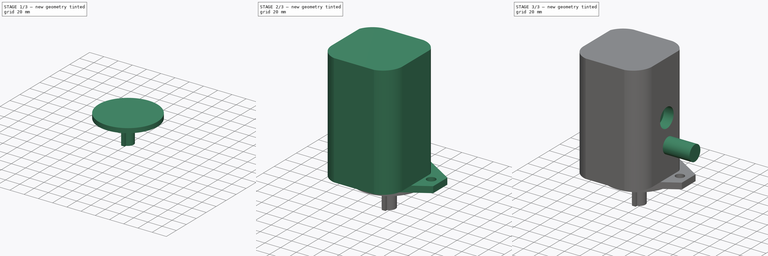
[diagram: build sequence overview — one tinted view per stage of 3, left to right]
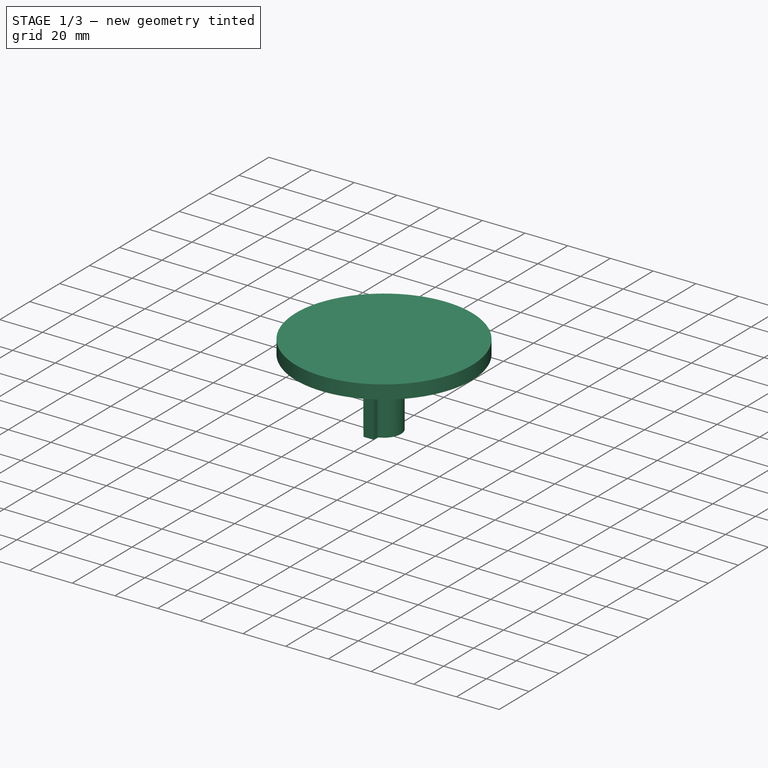
[diagram: stage 1 of 3 — iso view after this stage's code; geometry added in this stage tinted green]
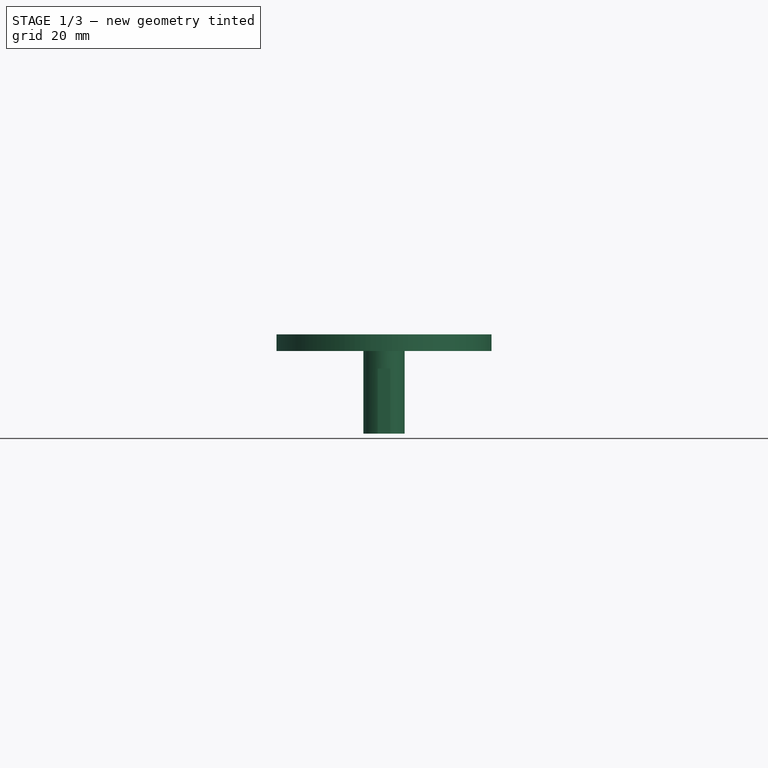
[diagram: stage 1 of 3 — front view after this stage's code; geometry added in this stage tinted green]
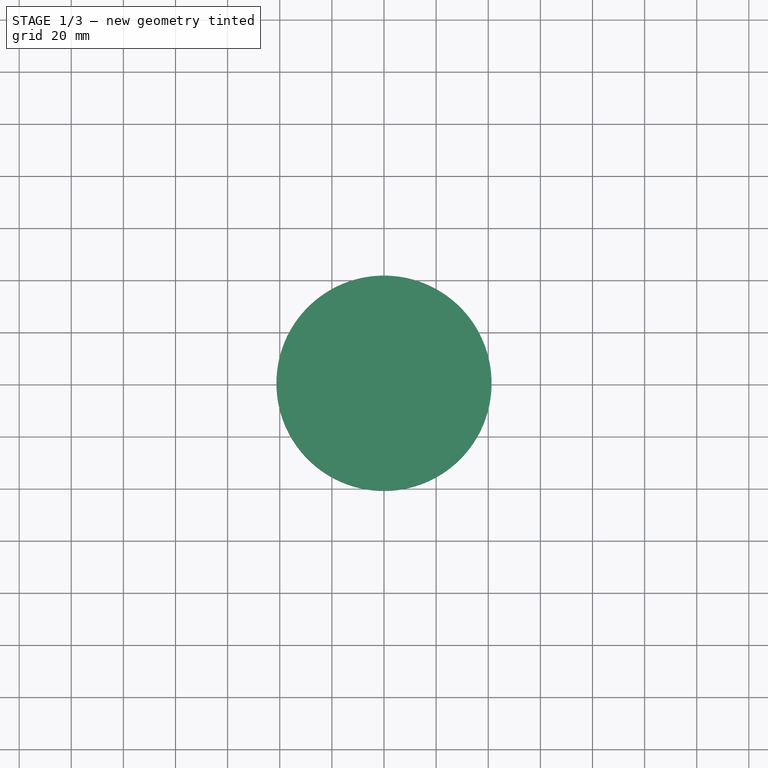
[diagram: stage 1 of 3 — top view after this stage's code; geometry added in this stage tinted green]
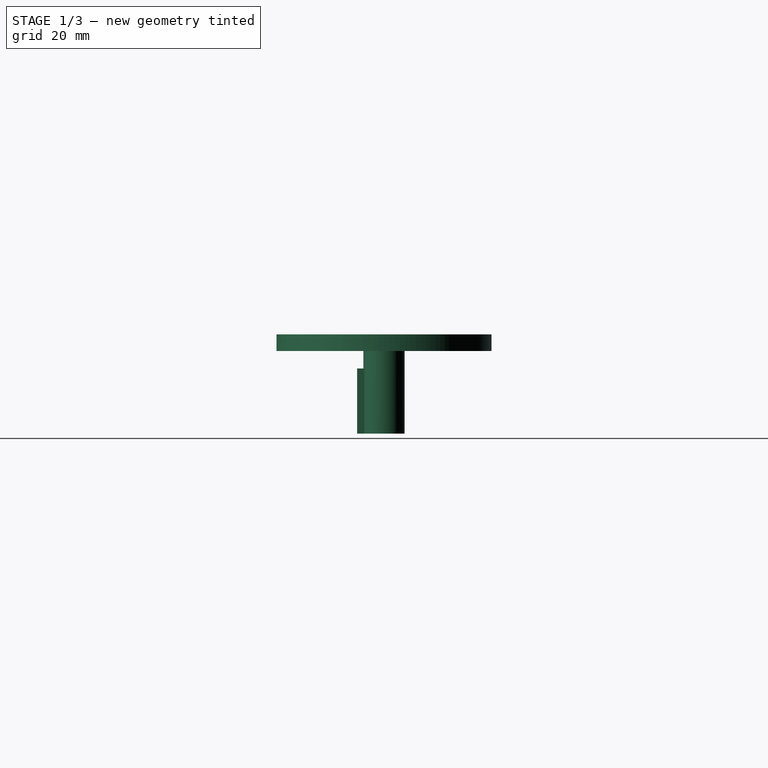
[diagram: stage 1 of 3 — right view after this stage's code; geometry added in this stage tinted green]
FCSTD DOCUMENT  (FreeCAD 0.16R6712 (Git))
Label: PC1708 log splitter hydraulic pump
License: All rights reserved
LicenseURL: http://en.wikipedia.org/wiki/All_rights_reserved
objects: Sketcher::SketchObject×8, PartDesign::Pad×6, PartDesign::Pocket×2
note: 24 computed .brp shape members not serialized (recipe doc carries the construction recipe); baked Part::Feature solids carry a one-line shape summary decoded from their .brp

FEATURE [Sketcher::SketchObject] Sketch  label="Round Shaft"
  sketch-geometry (1):
    g0: Circle CenterX=0 CenterY=0 CenterZ=0 NormalX=0 NormalY=0 NormalZ=1 Radius=7.9375
  constraints (2):
    c: Coincident(g0,g-1)
    c: Radius(g0) = 7.9375
FEATURE [PartDesign::Pad] Pad  label="Shaft rod"
  Length = 31.7
  Length2 = 100
  Sketch = -> Sketch
  Type = 0
FEATURE [Sketcher::SketchObject] Sketch001  label="Key way"
  ExternalGeometry = -> [Pad]
  Placement = pos=(0,0,0) rot=(1,0,0;3.14159rad)
  Support = -> Pad [Face2]
  sketch-geometry (6):
    g0: LineSegment StartX=-2.38 StartY=10.3175 StartZ=0 EndX=2.38 EndY=10.3175 EndZ=0
    g1: LineSegment StartX=2.38 StartY=10.3175 StartZ=0 EndX=2.38 EndY=5.5575 EndZ=0
    g2: LineSegment StartX=2.38 StartY=5.5575 StartZ=0 EndX=-2.38 EndY=5.5575 EndZ=0
    g3: LineSegment StartX=-2.38 StartY=5.5575 StartZ=0 EndX=-2.38 EndY=10.3175 EndZ=0
    g4: LineSegment [constr] StartX=0 StartY=7.9375 StartZ=0 EndX=-2.38 EndY=7.9375 EndZ=0
    g5: LineSegment [constr] StartX=0 StartY=7.9375 StartZ=0 EndX=2.38 EndY=7.9375 EndZ=0
  constraints (20):
    c: Coincident(g0,g1)
    c: Coincident(g1,g2)
    c: Coincident(g2,g3)
    c: Coincident(g3,g0)
    c: Horizontal(g0)
    c: Horizontal(g2)
    c: Vertical(g1)
    c: Equal(g0,g3)
    c: Equal(g3,g2)
    c: Equal(g2,g1)
    c: DistanceY(g3,g3) = 4.76  'Shaft Key way'
    c: Symmetric(g2,g1,g-2)  'Constraint12'
    c: PointOnObject(g4,g-3)
    c: Horizontal(g4)
    c: Coincident(g5,g4)
    c: Horizontal(g5)
    c: Equal(g4,g5)
    c: PointOnObject(g4,g3)
    c: PointOnObject(g5,g1)
    c: Symmetric(g0,g2,g4)
FEATURE [PartDesign::Pad] Pad001  label="Keyed shaft"
  Length = 25
  Length2 = 100
  Reversed = true
  Sketch = -> Sketch001
  Type = 0
FEATURE [Sketcher::SketchObject] Sketch002  label="Face01"
  Placement = pos=(0,0,31.7) rot=(0,0,1;0rad)
  Support = -> Pad001 [Face1]
  sketch-geometry (1):
    g0: Circle CenterX=0 CenterY=0 CenterZ=0 NormalX=0 NormalY=0 NormalZ=1 Radius=41.275
  constraints (2):
    c: Coincident(g0,g-1)
    c: Radius(g0) = 41.275
FEATURE [PartDesign::Pad] Pad002  label="Face plate"
  Length = 6.4
  Length2 = 100
  Sketch = -> Sketch002
  Type = 0
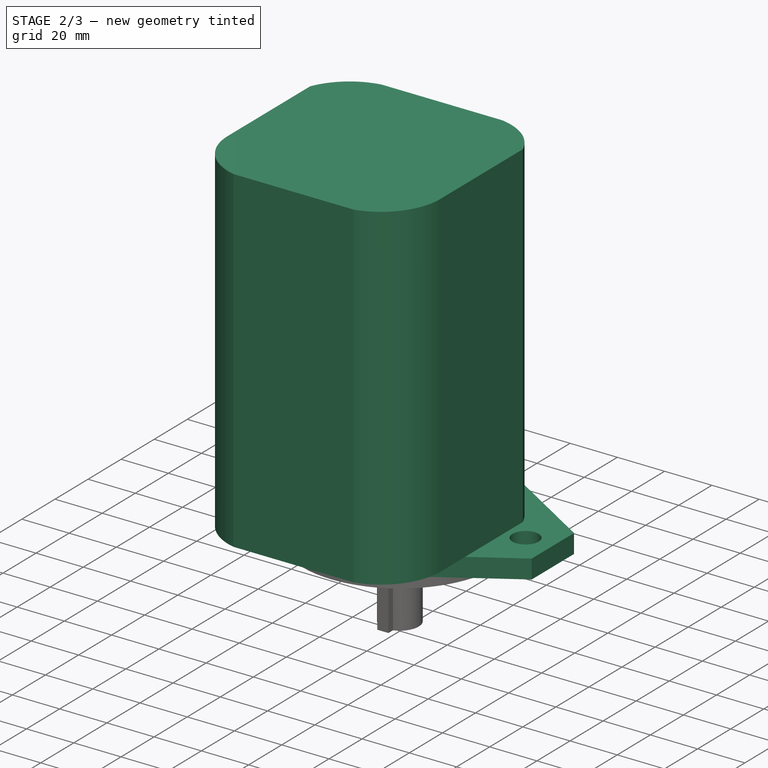
[diagram: stage 2 of 3 — iso view after this stage's code; geometry added in this stage tinted green]
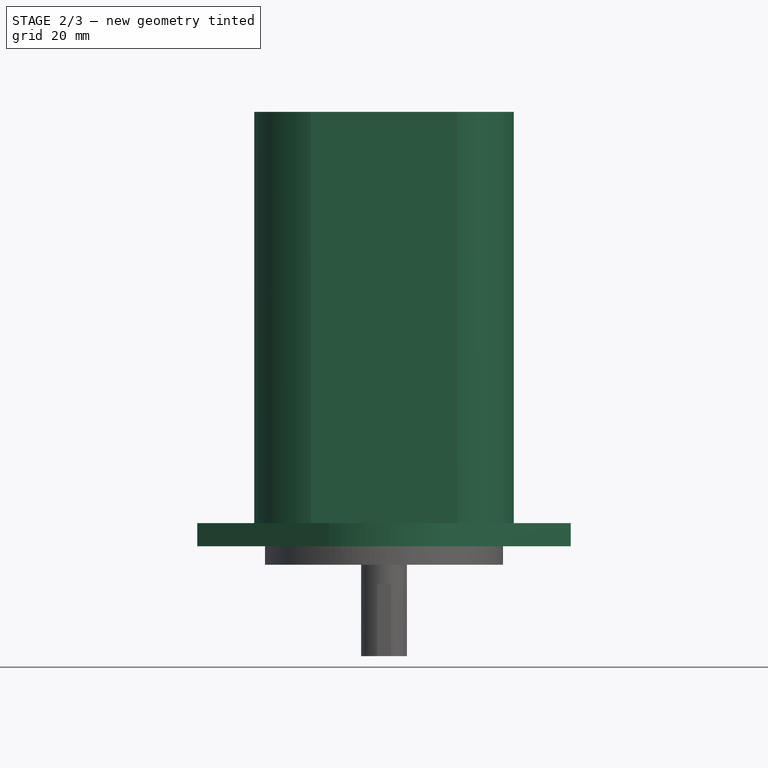
[diagram: stage 2 of 3 — front view after this stage's code; geometry added in this stage tinted green]
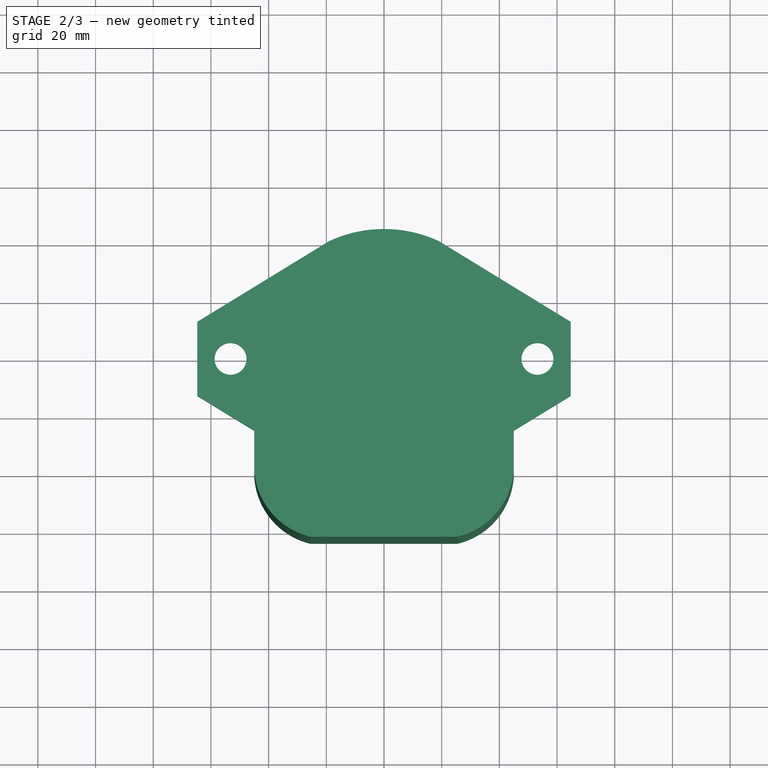
[diagram: stage 2 of 3 — top view after this stage's code; geometry added in this stage tinted green]
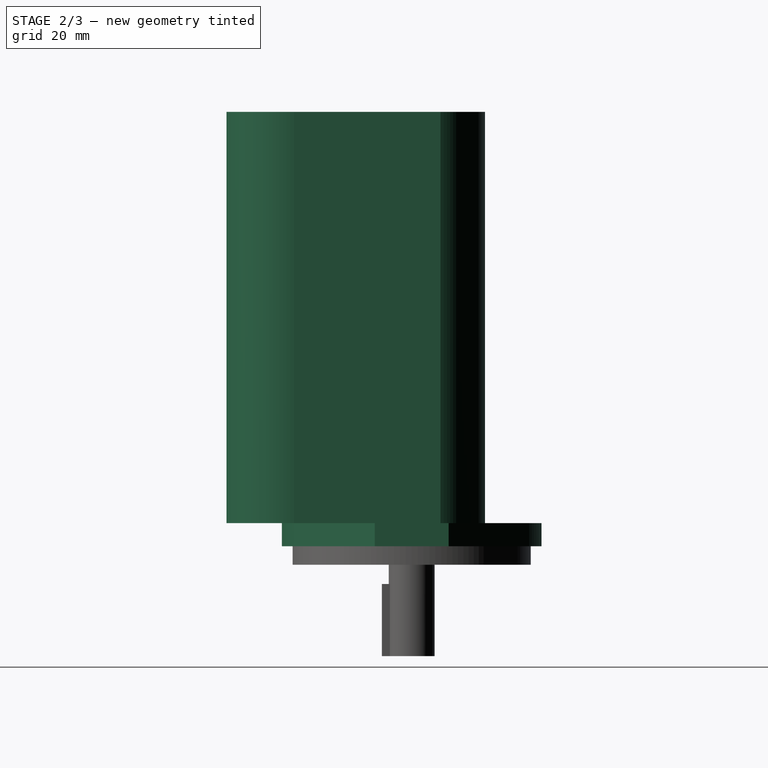
[diagram: stage 2 of 3 — right view after this stage's code; geometry added in this stage tinted green]
FEATURE [Sketcher::SketchObject] Sketch003  label="SAE A 2 bolt pattern"
  Placement = pos=(0,0,38.1) rot=(0,0,1;0rad)
  Support = -> Pad002 [Face9]
  sketch-geometry (12):
    g0: Circle [constr] CenterX=0 CenterY=0 CenterZ=0 NormalX=0 NormalY=0 NormalZ=1 Radius=53.2
    g1: Circle CenterX=-53.2 CenterY=0 CenterZ=0 NormalX=0 NormalY=0 NormalZ=1 Radius=5.55
    g2: Circle CenterX=53.2 CenterY=0 CenterZ=0 NormalX=0 NormalY=0 NormalZ=1 Radius=5.55
    g3: LineSegment StartX=-64.75 StartY=12.8062 StartZ=0 EndX=-64.75 EndY=-12.8062 EndZ=0
    g4: LineSegment StartX=64.75 StartY=12.8062 StartZ=0 EndX=64.75 EndY=-12.8062 EndZ=0
    g5: Circle [constr] CenterX=0 CenterY=0 CenterZ=0 NormalX=0 NormalY=0 NormalZ=1 Radius=45
    g6: LineSegment StartX=-64.75 StartY=12.8062 StartZ=0 EndX=-19.05 EndY=40.7688 EndZ=0
    g7: LineSegment StartX=19.05 StartY=40.7688 StartZ=0 EndX=64.75 EndY=12.8062 EndZ=0
    g8: ArcOfCircle CenterX=0 CenterY=0 CenterZ=0 NormalX=0 NormalY=0 NormalZ=1 Radius=45 StartAngle=1.13367 EndAngle=2.00792
    g9: LineSegment StartX=19.05 StartY=-40.7688 StartZ=0 EndX=64.75 EndY=-12.8062 EndZ=0
    g10: LineSegment StartX=-64.75 StartY=-12.8062 StartZ=0 EndX=-19.05 EndY=-40.7688 EndZ=0
    g11: ArcOfCircle CenterX=0 CenterY=0 CenterZ=0 NormalX=0 NormalY=0 NormalZ=1 Radius=45 StartAngle=4.27527 EndAngle=5.14951
  constraints (37):
    c: Coincident(g0,g-1)
    c: PointOnObject(g1,g-1)
    c: Radius(g1) = 5.55
    c: PointOnObject(g1,g0)
    c: Equal(g1,g2) = 11.1
    c: PointOnObject(g2,g-1)
    c: PointOnObject(g2,g0)
    c: Equal(g3,g4)
    c: Coincident(g5,g-1)
    c: Coincident(g8,g-1)
    c: Coincident(g8,g6)
    c: Coincident(g8,g7)
    c: PointOnObject(g7,g5)
    c: PointOnObject(g10,g5)
    c: Coincident(g11,g-1)
    c: Coincident(g11,g10)
    c: Coincident(g11,g9)
    c: Equal(g10,g9)
    c: Equal(g9,g7)
    c: Equal(g7,g6)
    c: Parallel(g6,g9)
    c: Parallel(g7,g10)
    c: Radius(g0) = 53.2
    c: Symmetric(g3,g3,g-1)
    c: Radius(g5) = 45
    c: Symmetric(g4,g4,g-1)
    c: Symmetric(g7,g6,g-2)
    c: Symmetric(g9,g10,g-2)
    c: Coincident(g10,g3)
    c: Coincident(g6,g3)
    c: Coincident(g7,g4)
    c: DistanceX(g10,g9) = 38.1
    c: Symmetric(g7,g9,g-1)
    c: Symmetric(g6,g10,g-1)
    c: Symmetric(g4,g3,g-2)
    c: DistanceX(g4) = 64.75
    c: DistanceY(g4) = -12.8062
FEATURE [PartDesign::Pad] Pad003  label="SAE A 2 Bolt Flange"
  Length = 8
  Length2 = 100
  Sketch = -> Sketch003
  Type = 0
FEATURE [Sketcher::SketchObject] Sketch004  label="body"
  Placement = pos=(0,0,46.1) rot=(0,0,1;0rad)
  Support = -> Pad003 [Face20]
  sketch-geometry (10):
    g0: LineSegment StartX=-45 StartY=10 StartZ=0 EndX=-45 EndY=-40.8 EndZ=0
    g1: LineSegment StartX=45 StartY=10 StartZ=0 EndX=45 EndY=-40.8 EndZ=0
    g2: LineSegment StartX=-25.4 StartY=25.4 StartZ=0 EndX=25.4 EndY=25.4 EndZ=0
    g3: LineSegment StartX=-25.4 StartY=-64.2 StartZ=0 EndX=25.4 EndY=-64.2 EndZ=0
    g4: Circle [constr] CenterX=0 CenterY=0 CenterZ=0 NormalX=0 NormalY=0 NormalZ=1 Radius=45
    g5: LineSegment [constr] StartX=0 StartY=-64.2 StartZ=0 EndX=0 EndY=45 EndZ=0
    g6: ArcOfCircle CenterX=-21.5263 CenterY=0.297121 CenterZ=0 NormalX=0 NormalY=0 NormalZ=1 Radius=25.4 StartAngle=1.7239 EndAngle=2.74963
    g7: ArcOfCircle CenterX=21.5263 CenterY=0.297121 CenterZ=0 NormalX=0 NormalY=0 NormalZ=1 Radius=25.4 StartAngle=0.391963 EndAngle=1.41769
    g8: ArcOfCircle CenterX=-19.6352 CenterY=-39.4628 CenterZ=0 NormalX=0 NormalY=0 NormalZ=1 Radius=25.4 StartAngle=3.19426 EndAngle=4.48343
    g9: ArcOfCircle CenterX=19.6352 CenterY=-39.4628 CenterZ=0 NormalX=0 NormalY=0 NormalZ=1 Radius=25.4 StartAngle=4.94134 EndAngle=6.23052
  constraints (31):
    c: Vertical(g0)
    c: Vertical(g1)
    c: Equal(g0,g1)
    c: Equal(g3,g2)
    c: Symmetric(g3,g3,g-2)
    c: Symmetric(g2,g2,g-2)
    c: DistanceY(g-1,g2) = 25.4
    c: Coincident(g4,g-1)
    c: Radius(g4) = 45
    c: Tangent(g0,g4)
    c: Tangent(g1,g4)
    c: Vertical(g5)
    c: PointOnObject(g5,g4)
    c: PointOnObject(g5,g-2)
    c: PointOnObject(g5,g3)
    c: Coincident(g6,g0)
    c: Coincident(g6,g2)
    c: DistanceY(g-1,g0) = 10
    c: Coincident(g7,g1)
    c: Coincident(g7,g2)
    c: Symmetric(g7,g6,g5)
    c: Coincident(g8,g0)
    c: Coincident(g8,g3)
    c: Coincident(g9,g1)
    c: Symmetric(g8,g9,g5)
    c: Radius(g6) = 25.4
    c: Equal(g6,g8)
    c: Coincident(g9,g3)
    c: DistanceY(g1,g1) = 50.8
    c: DistanceX(g2,g2) = 50.8
    c: DistanceY(g5,g5) = 109.2
FEATURE [PartDesign::Pad] Pad004  label="pump"
  Length = 142.6
  Length2 = 100
  Sketch = -> Sketch004
  Type = 0
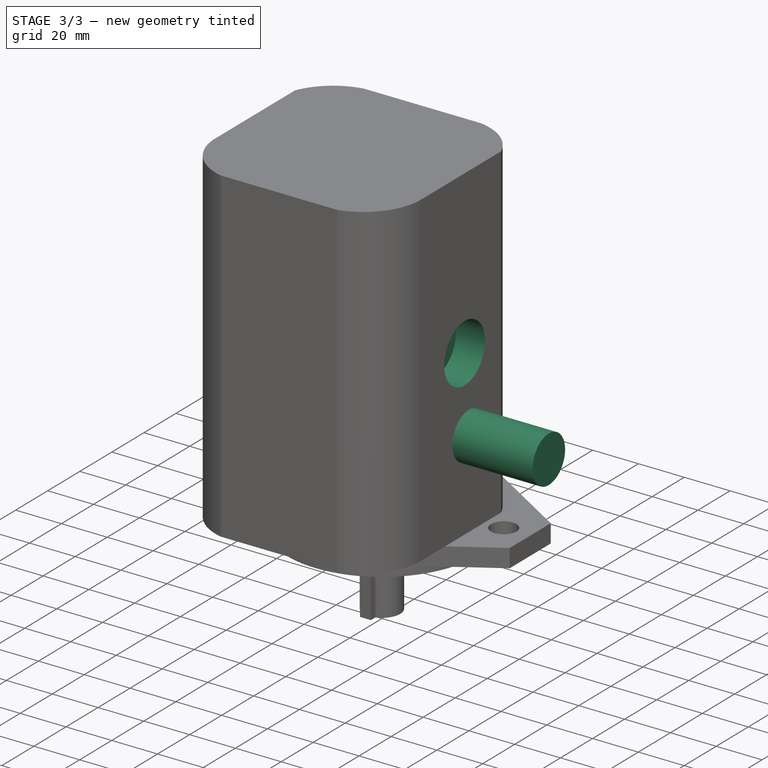
[diagram: stage 3 of 3 — iso view after this stage's code; geometry added in this stage tinted green]
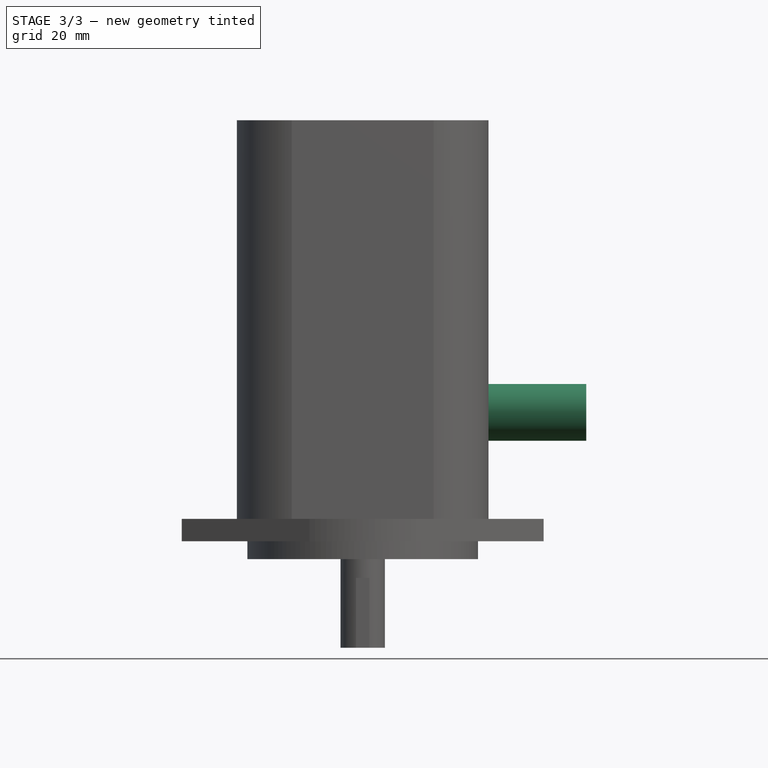
[diagram: stage 3 of 3 — front view after this stage's code; geometry added in this stage tinted green]
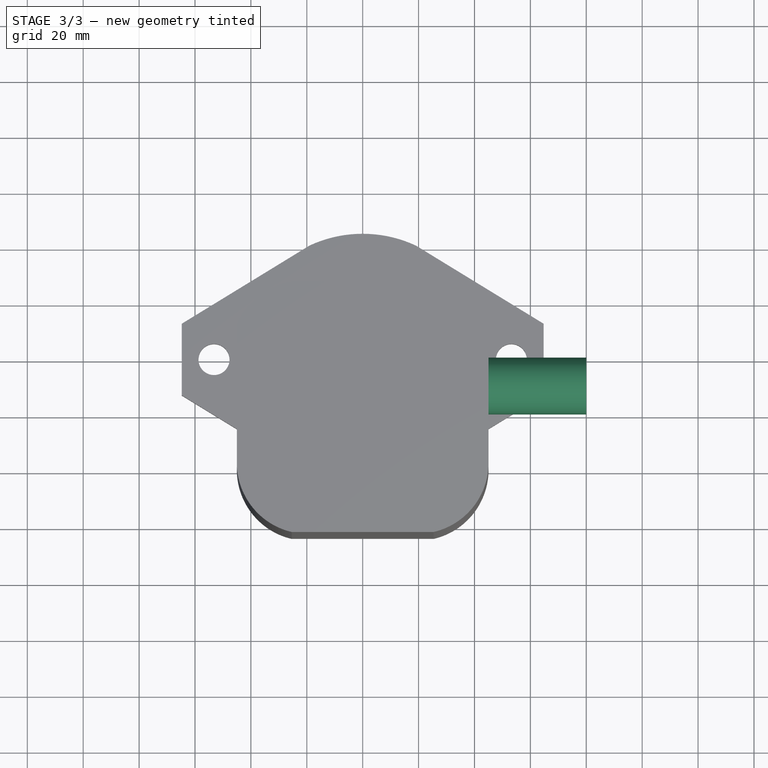
[diagram: stage 3 of 3 — top view after this stage's code; geometry added in this stage tinted green]
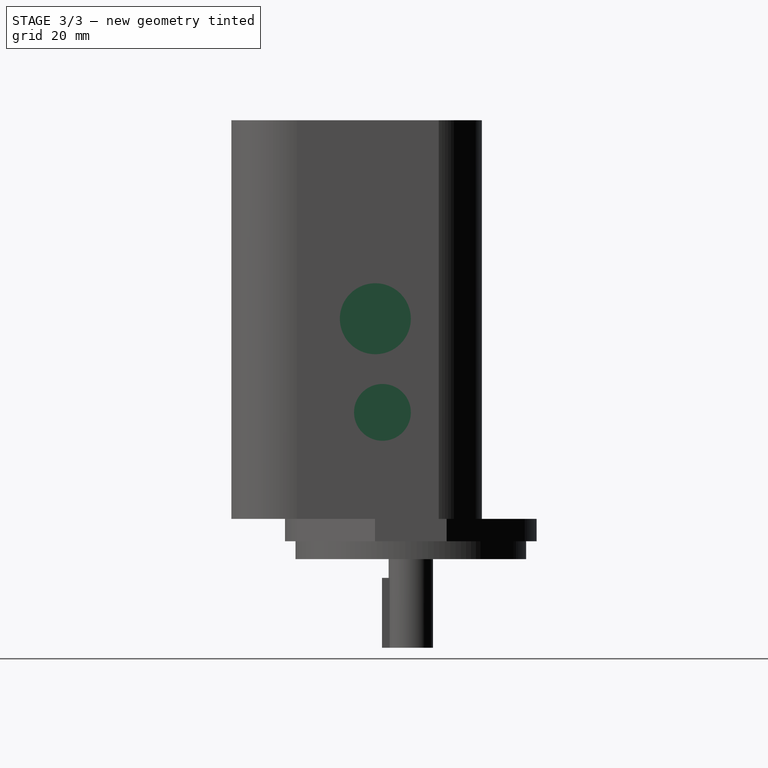
[diagram: stage 3 of 3 — right view after this stage's code; geometry added in this stage tinted green]
FEATURE [Sketcher::SketchObject] Sketch005  label="port inlet 1in"
  ExternalGeometry = -> [Pad004]
  Placement = pos=(45,0,0) rot=(0.57735,0.57735,0.57735;2.0944rad)
  Support = -> Pad004 [Face26]
  sketch-geometry (2):
    g0: LineSegment [constr] StartX=-12.7 StartY=46.1 StartZ=0 EndX=-12.7 EndY=117.7 EndZ=0
    g1: Circle CenterX=-12.7 CenterY=117.7 CenterZ=0 NormalX=0 NormalY=0 NormalZ=1 Radius=12.7
  constraints (7):
    c: DistanceY(g0,g0) = 71.6
    c: Radius(g1) = 12.7
    c: Parallel(g0,g-2)
    c: DistanceX(g0,g-1) = 12.7
    c: Tangent(g1,g-2)
    c: Coincident(g1,g0)
    c: PointOnObject(g0,g-3)
FEATURE [PartDesign::Pocket] Pocket  label="Inlet Port 1 in"
  Length = 12.7
  Sketch = -> Sketch005
  Type = 0
FEATURE [Sketcher::SketchObject] Sketch006  label="access port"
  ExternalGeometry = -> [Pocket]
  Placement = pos=(45,0,0) rot=(0.57735,0.57735,0.57735;2.0944rad)
  Support = -> Pocket [Face26]
  sketch-geometry (1):
    g0: Circle CenterX=-10.16 CenterY=84.2 CenterZ=0 NormalX=0 NormalY=0 NormalZ=1 Radius=10.16
  constraints (3):
    c: Radius(g0) = 10.16
    c: Tangent(g0,g-2)
    c: DistanceY(g-3,g0) = 38.1
FEATURE [PartDesign::Pad] Pad005  label="Valve Access Port"
  Length = 35
  Length2 = 100
  Sketch = -> Sketch006
  Type = 0
FEATURE [Sketcher::SketchObject] Sketch007  label="Outlet"
  ExternalGeometry = -> [Pad005]
  Placement = pos=(-45,0,0) rot=(0.57735,-0.57735,-0.57735;2.0944rad)
  Support = -> Pad005 [Face22]
  sketch-geometry (2):
    g0: Circle CenterX=9.525 CenterY=164.2 CenterZ=0 NormalX=0 NormalY=0 NormalZ=1 Radius=9.525
    g1: LineSegment [constr] StartX=9.525 StartY=164.2 StartZ=0 EndX=9.525 EndY=46.1 EndZ=0
  constraints (6):
    c: Radius(g0) = 9.525  'Outlet Port'
    c: Tangent(g0,g-2)
    c: Coincident(g1,g0)
    c: PointOnObject(g1,g-3)
    c: Vertical(g1)
    c: DistanceY(g1,g1) = 118.1
FEATURE [PartDesign::Pocket] Pocket001  label="Outlet Port 3/4in"
  Length = 12.7
  Sketch = -> Sketch007
  Type = 0
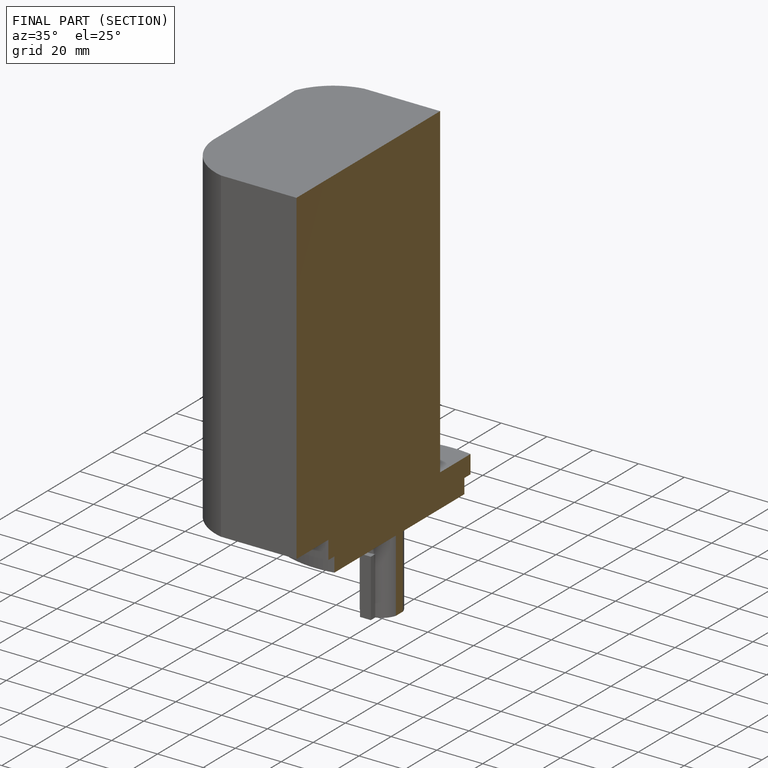
[diagram: finished part — half-section view (interior)]
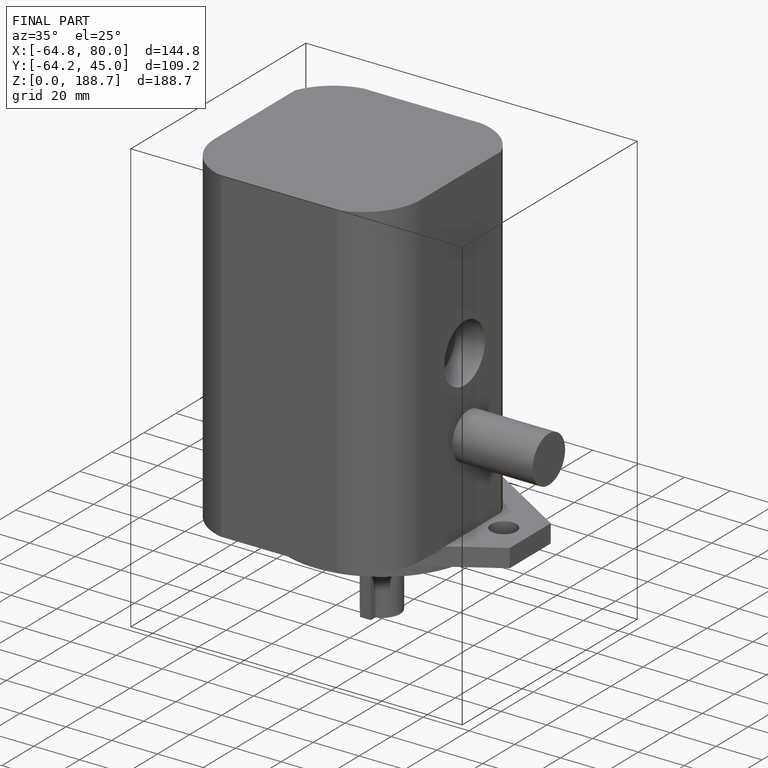
[diagram: finished part — iso view with bounding-box wireframe]
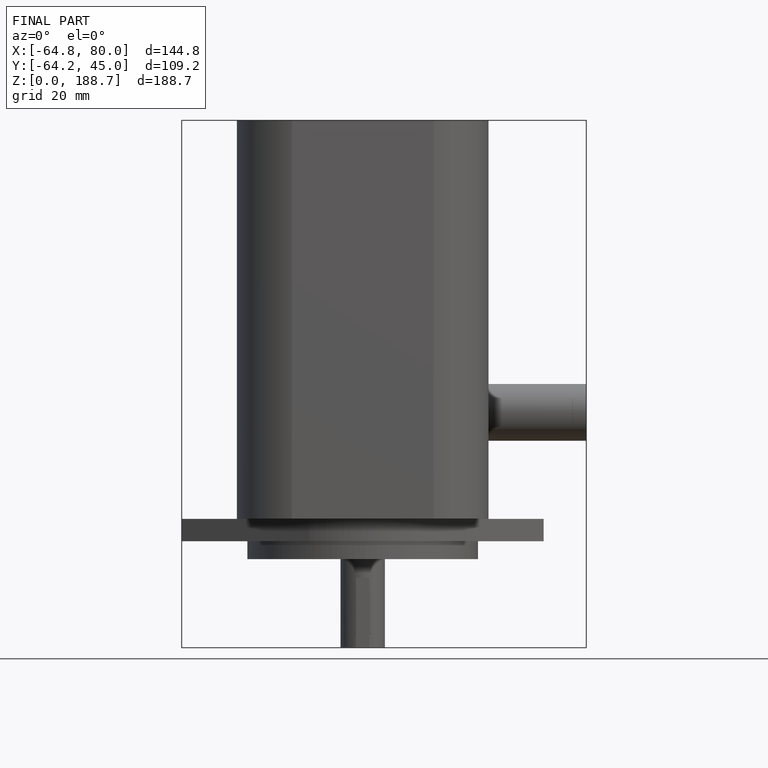
[diagram: finished part — front view with bounding-box wireframe]
